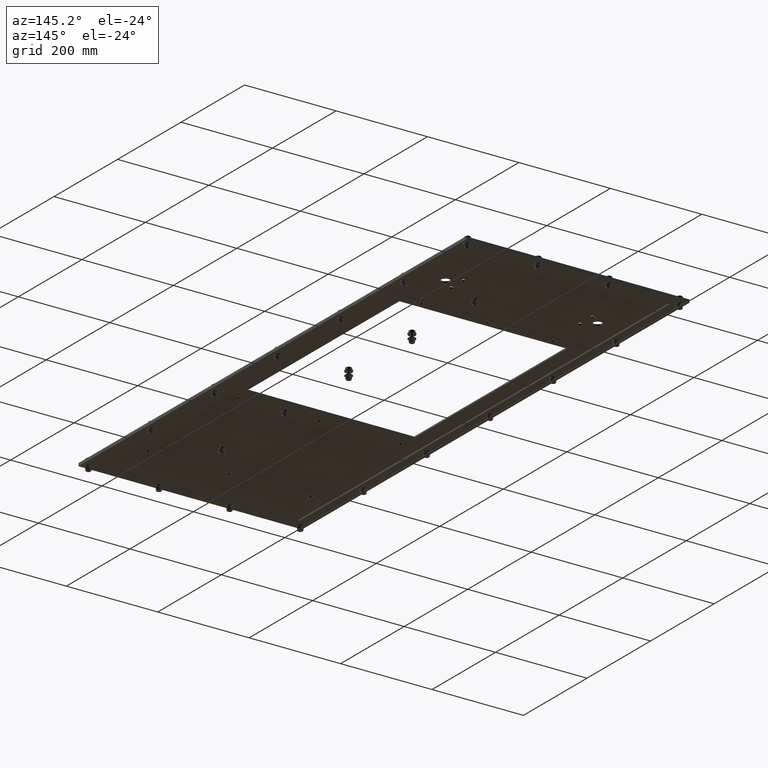
[diagram: clean part render]
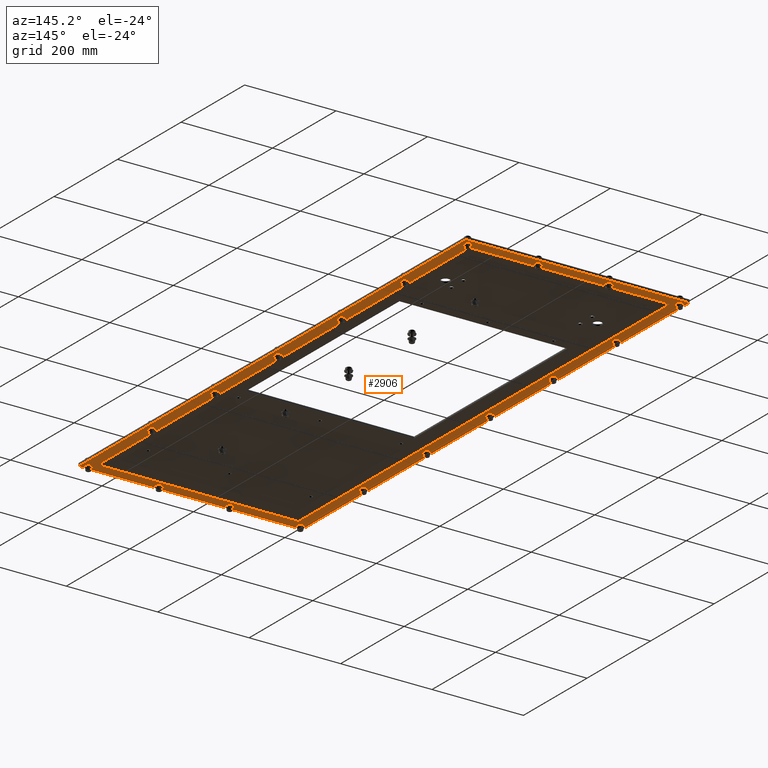
[diagram: same view with one face highlighted and labeled with its STEP entity id]
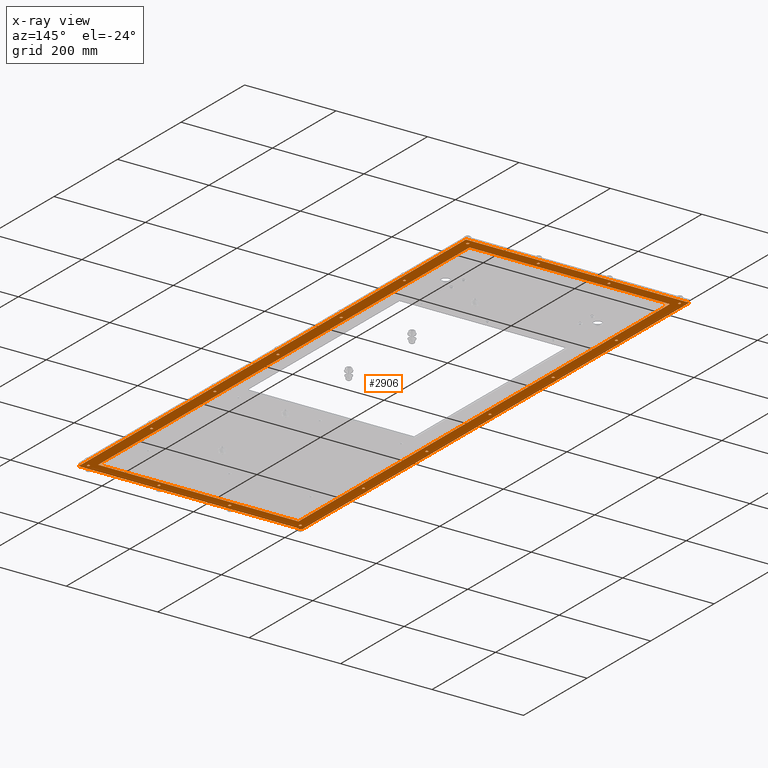
[diagram: x-ray of the same camera — body ghosted, the highlighted face saturated]
A machine part, auxiliary view. The second image highlights one B-rep face of the part: STEP entity #2906.
The next image is the same camera in x-ray: the body ghosted, the highlighted face saturated — about 0% of this face is hidden behind the body in this view.
In plain terms, the highlighted planar face has unit normal (0, 0, 1).
Its self-contained STEP definition (entity closure, byte-faithful):
#331=FACE_BOUND('',#980,.T.);
#332=FACE_BOUND('',#981,.T.);
#333=FACE_BOUND('',#982,.T.);
#334=FACE_BOUND('',#983,.T.);
#335=FACE_BOUND('',#984,.T.);
#336=FACE_BOUND('',#985,.T.);
#337=FACE_BOUND('',#986,.T.);
#338=FACE_BOUND('',#987,.T.);
#339=FACE_BOUND('',#988,.T.);
#340=FACE_BOUND('',#989,.T.);
#341=FACE_BOUND('',#990,.T.);
#342=FACE_BOUND('',#991,.T.);
#343=FACE_BOUND('',#992,.T.);
#344=FACE_BOUND('',#993,.T.);
#345=FACE_BOUND('',#994,.T.);
#346=FACE_BOUND('',#995,.T.);
#347=FACE_BOUND('',#996,.T.);
#348=FACE_BOUND('',#997,.T.);
#349=FACE_BOUND('',#998,.T.);
#448=CIRCLE('',#3115,0.109375);
#450=CIRCLE('',#3118,0.109375);
#452=CIRCLE('',#3121,0.109375);
#454=CIRCLE('',#3124,0.109375);
#456=CIRCLE('',#3127,0.109375);
#458=CIRCLE('',#3130,0.109375);
#460=CIRCLE('',#3133,0.109375);
#462=CIRCLE('',#3136,0.109375);
#464=CIRCLE('',#3139,0.109375);
#466=CIRCLE('',#3142,0.109375);
#468=CIRCLE('',#3145,0.109375);
#470=CIRCLE('',#3148,0.109375);
#472=CIRCLE('',#3151,0.109375);
#474=CIRCLE('',#3154,0.109375);
#476=CIRCLE('',#3157,0.109375);
#478=CIRCLE('',#3160,0.109375);
#480=CIRCLE('',#3163,0.109375);
#482=CIRCLE('',#3166,0.109375);
#681=FACE_OUTER_BOUND('',#979,.T.);
#979=EDGE_LOOP('',(#2261,#2262,#2263,#2264));
#980=EDGE_LOOP('',(#2265));
#981=EDGE_LOOP('',(#2266));
#982=EDGE_LOOP('',(#2267));
#983=EDGE_LOOP('',(#2268));
#984=EDGE_LOOP('',(#2269));
#985=EDGE_LOOP('',(#2270));
#986=EDGE_LOOP('',(#2271));
#987=EDGE_LOOP('',(#2272));
#988=EDGE_LOOP('',(#2273));
#989=EDGE_LOOP('',(#2274));
#990=EDGE_LOOP('',(#2275));
#991=EDGE_LOOP('',(#2276));
#992=EDGE_LOOP('',(#2277));
#993=EDGE_LOOP('',(#2278));
#994=EDGE_LOOP('',(#2279));
#995=EDGE_LOOP('',(#2280));
#996=EDGE_LOOP('',(#2281));
#997=EDGE_LOOP('',(#2282));
#998=EDGE_LOOP('',(#2283,#2284,#2285,#2286));
#1146=LINE('',#4529,#1287);
#1149=LINE('',#4535,#1290);
#1152=LINE('',#4541,#1293);
#1155=LINE('',#4545,#1296);
#1158=LINE('',#4553,#1299);
#1162=LINE('',#4560,#1303);
#1165=LINE('',#4566,#1306);
#1167=LINE('',#4569,#1308);
#1287=VECTOR('',#3718,46.);
#1290=VECTOR('',#3723,17.25);
#1293=VECTOR('',#3728,46.);
#1296=VECTOR('',#3733,17.25);
#1299=VECTOR('',#3738,48.);
#1303=VECTOR('',#3744,19.25);
#1306=VECTOR('',#3749,48.);
#1308=VECTOR('',#3753,19.25);
#1484=VERTEX_POINT('',#4433);
#1486=VERTEX_POINT('',#4438);
#1488=VERTEX_POINT('',#4443);
#1490=VERTEX_POINT('',#4448);
#1492=VERTEX_POINT('',#4453);
#1494=VERTEX_POINT('',#4458);
#1496=VERTEX_POINT('',#4463);
#1498=VERTEX_POINT('',#4468);
#1500=VERTEX_POINT('',#4473);
#1502=VERTEX_POINT('',#4478);
#1504=VERTEX_POINT('',#4483);
#1506=VERTEX_POINT('',#4488);
#1508=VERTEX_POINT('',#4493);
#1510=VERTEX_POINT('',#4498);
#1512=VERTEX_POINT('',#4503);
#1514=VERTEX_POINT('',#4508);
#1516=VERTEX_POINT('',#4513);
#1518=VERTEX_POINT('',#4518);
#1522=VERTEX_POINT('',#4526);
#1523=VERTEX_POINT('',#4528);
#1525=VERTEX_POINT('',#4534);
#1527=VERTEX_POINT('',#4540);
#1530=VERTEX_POINT('',#4550);
#1531=VERTEX_POINT('',#4552);
#1533=VERTEX_POINT('',#4558);
#1535=VERTEX_POINT('',#4564);
#1750=EDGE_CURVE('',#1484,#1484,#448,.T.);
#1752=EDGE_CURVE('',#1486,#1486,#450,.T.);
#1754=EDGE_CURVE('',#1488,#1488,#452,.T.);
#1756=EDGE_CURVE('',#1490,#1490,#454,.T.);
#1758=EDGE_CURVE('',#1492,#1492,#456,.T.);
#1760=EDGE_CURVE('',#1494,#1494,#458,.T.);
#1762=EDGE_CURVE('',#1496,#1496,#460,.T.);
#1764=EDGE_CURVE('',#1498,#1498,#462,.T.);
#1766=EDGE_CURVE('',#1500,#1500,#464,.T.);
#1768=EDGE_CURVE('',#1502,#1502,#466,.T.);
#1770=EDGE_CURVE('',#1504,#1504,#468,.T.);
#1772=EDGE_CURVE('',#1506,#1506,#470,.T.);
#1774=EDGE_CURVE('',#1508,#1508,#472,.T.);
#1776=EDGE_CURVE('',#1510,#1510,#474,.T.);
#1778=EDGE_CURVE('',#1512,#1512,#476,.T.);
#1780=EDGE_CURVE('',#1514,#1514,#478,.T.);
#1782=EDGE_CURVE('',#1516,#1516,#480,.T.);
#1784=EDGE_CURVE('',#1518,#1518,#482,.T.);
#1788=EDGE_CURVE('',#1523,#1522,#1146,.T.);
#1791=EDGE_CURVE('',#1525,#1523,#1149,.T.);
#1794=EDGE_CURVE('',#1527,#1525,#1152,.T.);
#1797=EDGE_CURVE('',#1522,#1527,#1155,.T.);
#1800=EDGE_CURVE('',#1531,#1530,#1158,.T.);
#1804=EDGE_CURVE('',#1530,#1533,#1162,.T.);
#1807=EDGE_CURVE('',#1533,#1535,#1165,.T.);
#1809=EDGE_CURVE('',#1535,#1531,#1167,.T.);
#2261=ORIENTED_EDGE('',*,*,#1809,.T.);
#2262=ORIENTED_EDGE('',*,*,#1800,.T.);
#2263=ORIENTED_EDGE('',*,*,#1804,.T.);
#2264=ORIENTED_EDGE('',*,*,#1807,.T.);
#2265=ORIENTED_EDGE('',*,*,#1750,.T.);
#2266=ORIENTED_EDGE('',*,*,#1752,.T.);
#2267=ORIENTED_EDGE('',*,*,#1754,.T.);
#2268=ORIENTED_EDGE('',*,*,#1756,.T.);
#2269=ORIENTED_EDGE('',*,*,#1758,.T.);
#2270=ORIENTED_EDGE('',*,*,#1760,.T.);
#2271=ORIENTED_EDGE('',*,*,#1762,.T.);
#2272=ORIENTED_EDGE('',*,*,#1764,.T.);
#2273=ORIENTED_EDGE('',*,*,#1766,.T.);
#2274=ORIENTED_EDGE('',*,*,#1768,.T.);
#2275=ORIENTED_EDGE('',*,*,#1770,.T.);
#2276=ORIENTED_EDGE('',*,*,#1772,.T.);
#2277=ORIENTED_EDGE('',*,*,#1774,.T.);
#2278=ORIENTED_EDGE('',*,*,#1776,.T.);
#2279=ORIENTED_EDGE('',*,*,#1778,.T.);
#2280=ORIENTED_EDGE('',*,*,#1780,.T.);
#2281=ORIENTED_EDGE('',*,*,#1782,.T.);
#2282=ORIENTED_EDGE('',*,*,#1784,.T.);
#2283=ORIENTED_EDGE('',*,*,#1788,.T.);
#2284=ORIENTED_EDGE('',*,*,#1797,.T.);
#2285=ORIENTED_EDGE('',*,*,#1794,.T.);
#2286=ORIENTED_EDGE('',*,*,#1791,.T.);
#2660=PLANE('',#3177);
#2906=ADVANCED_FACE('',(#681,#331,#332,#333,#334,#335,#336,#337,#338,#339,
#340,#341,#342,#343,#344,#345,#346,#347,#348,#349),#2660,.F.);
#3115=AXIS2_PLACEMENT_3D('',#4434,#3608,#3609);
#3118=AXIS2_PLACEMENT_3D('',#4439,#3614,#3615);
#3121=AXIS2_PLACEMENT_3D('',#4444,#3620,#3621);
#3124=AXIS2_PLACEMENT_3D('',#4449,#3626,#3627);
#3127=AXIS2_PLACEMENT_3D('',#4454,#3632,#3633);
#3130=AXIS2_PLACEMENT_3D('',#4459,#3638,#3639);
#3133=AXIS2_PLACEMENT_3D('',#4464,#3644,#3645);
#3136=AXIS2_PLACEMENT_3D('',#4469,#3650,#3651);
#3139=AXIS2_PLACEMENT_3D('',#4474,#3656,#3657);
#3142=AXIS2_PLACEMENT_3D('',#4479,#3662,#3663);
#3145=AXIS2_PLACEMENT_3D('',#4484,#3668,#3669);
#3148=AXIS2_PLACEMENT_3D('',#4489,#3674,#3675);
#3151=AXIS2_PLACEMENT_3D('',#4494,#3680,#3681);
#3154=AXIS2_PLACEMENT_3D('',#4499,#3686,#3687);
#3157=AXIS2_PLACEMENT_3D('',#4504,#3692,#3693);
#3160=AXIS2_PLACEMENT_3D('',#4509,#3698,#3699);
#3163=AXIS2_PLACEMENT_3D('',#4514,#3704,#3705);
#3166=AXIS2_PLACEMENT_3D('',#4519,#3710,#3711);
#3177=AXIS2_PLACEMENT_3D('',#4571,#3756,#3757);
#3608=DIRECTION('center_axis',(0.,0.,1.));
#3609=DIRECTION('ref_axis',(-1.,0.,0.));
#3614=DIRECTION('center_axis',(0.,0.,1.));
#3615=DIRECTION('ref_axis',(-1.,0.,0.));
#3620=DIRECTION('center_axis',(0.,0.,1.));
#3621=DIRECTION('ref_axis',(-1.,0.,0.));
#3626=DIRECTION('center_axis',(0.,0.,1.));
#3627=DIRECTION('ref_axis',(-1.,0.,0.));
#3632=DIRECTION('center_axis',(0.,0.,1.));
#3633=DIRECTION('ref_axis',(-1.,0.,0.));
#3638=DIRECTION('center_axis',(0.,0.,1.));
#3639=DIRECTION('ref_axis',(-1.,0.,0.));
#3644=DIRECTION('center_axis',(0.,0.,1.));
#3645=DIRECTION('ref_axis',(-1.,0.,0.));
#3650=DIRECTION('center_axis',(0.,0.,1.));
#3651=DIRECTION('ref_axis',(-1.,0.,0.));
#3656=DIRECTION('center_axis',(0.,0.,1.));
#3657=DIRECTION('ref_axis',(-1.,0.,0.));
#3662=DIRECTION('center_axis',(0.,0.,1.));
#3663=DIRECTION('ref_axis',(-1.,0.,0.));
#3668=DIRECTION('center_axis',(0.,0.,1.));
#3669=DIRECTION('ref_axis',(-1.,0.,0.));
#3674=DIRECTION('center_axis',(0.,0.,1.));
#3675=DIRECTION('ref_axis',(-1.,0.,0.));
#3680=DIRECTION('center_axis',(0.,0.,1.));
#3681=DIRECTION('ref_axis',(-1.,0.,0.));
#3686=DIRECTION('center_axis',(0.,0.,1.));
#3687=DIRECTION('ref_axis',(-1.,0.,0.));
#3692=DIRECTION('center_axis',(0.,0.,1.));
#3693=DIRECTION('ref_axis',(-1.,0.,0.));
#3698=DIRECTION('center_axis',(0.,0.,1.));
#3699=DIRECTION('ref_axis',(-1.,0.,0.));
#3704=DIRECTION('center_axis',(0.,0.,1.));
#3705=DIRECTION('ref_axis',(-1.,0.,0.));
#3710=DIRECTION('center_axis',(0.,0.,1.));
#3711=DIRECTION('ref_axis',(-1.,0.,0.));
#3718=DIRECTION('',(-1.82439935576883E-16,1.,0.));
#3723=DIRECTION('',(1.,3.24337663247792E-16,0.));
#3728=DIRECTION('',(5.77726462660129E-16,-1.,0.));
#3733=DIRECTION('',(-1.,-8.10844158119479E-17,0.));
#3738=DIRECTION('',(2.91397119324188E-16,-1.,0.));
#3744=DIRECTION('',(-1.,0.,0.));
#3749=DIRECTION('',(-4.22525823020073E-16,1.,0.));
#3753=DIRECTION('',(1.,0.,0.));
#3756=DIRECTION('center_axis',(0.,0.,1.));
#3757=DIRECTION('ref_axis',(1.,0.,0.));
#4433=CARTESIAN_POINT('',(13.3394636570073,-34.4703914895966,0.));
#4434=CARTESIAN_POINT('Origin',(13.2300886570073,-34.4703914895966,0.));
#4438=CARTESIAN_POINT('',(7.256130323674,-34.4703914895966,0.));
#4439=CARTESIAN_POINT('Origin',(7.146755323674,-34.4703914895966,0.));
#4443=CARTESIAN_POINT('',(1.17279699034067,-34.4703914895966,0.));
#4444=CARTESIAN_POINT('Origin',(1.06342199034067,-34.4703914895966,0.));
#4448=CARTESIAN_POINT('',(-4.91053634299267,-34.4703914895966,0.));
#4449=CARTESIAN_POINT('Origin',(-5.01991134299267,-34.4703914895966,0.));
#4453=CARTESIAN_POINT('',(13.3394636570073,-26.6370581562632,0.));
#4454=CARTESIAN_POINT('Origin',(13.2300886570073,-26.6370581562632,0.));
#4458=CARTESIAN_POINT('',(-4.91053634299267,-26.6370581562632,0.));
#4459=CARTESIAN_POINT('Origin',(-5.01991134299267,-26.6370581562632,0.));
#4463=CARTESIAN_POINT('',(13.3394636570073,-18.8037248229299,0.));
#4464=CARTESIAN_POINT('Origin',(13.2300886570073,-18.8037248229299,0.));
#4468=CARTESIAN_POINT('',(-4.91053634299267,-18.8037248229299,0.));
#4469=CARTESIAN_POINT('Origin',(-5.01991134299268,-18.8037248229299,0.));
#4473=CARTESIAN_POINT('',(13.3394636570073,-10.9703914895966,0.));
#4474=CARTESIAN_POINT('Origin',(13.2300886570073,-10.9703914895966,0.));
#4478=CARTESIAN_POINT('',(-4.91053634299268,-10.9703914895966,0.));
#4479=CARTESIAN_POINT('Origin',(-5.01991134299268,-10.9703914895966,0.));
#4483=CARTESIAN_POINT('',(13.3394636570073,-3.13705815626323,0.));
#4484=CARTESIAN_POINT('Origin',(13.2300886570073,-3.13705815626323,0.));
#4488=CARTESIAN_POINT('',(-4.91053634299268,-3.13705815626323,0.));
#4489=CARTESIAN_POINT('Origin',(-5.01991134299268,-3.13705815626323,0.));
#4493=CARTESIAN_POINT('',(13.3394636570073,4.69627517707011,0.));
#4494=CARTESIAN_POINT('Origin',(13.2300886570073,4.69627517707011,0.));
#4498=CARTESIAN_POINT('',(-4.91053634299269,4.69627517707011,0.));
#4499=CARTESIAN_POINT('Origin',(-5.01991134299268,4.69627517707011,0.));
#4503=CARTESIAN_POINT('',(13.3394636570073,12.5296085104034,0.));
#4504=CARTESIAN_POINT('Origin',(13.2300886570073,12.5296085104034,0.));
#4508=CARTESIAN_POINT('',(7.25613032367398,12.5296085104034,0.));
#4509=CARTESIAN_POINT('Origin',(7.14675532367398,12.5296085104034,0.));
#4513=CARTESIAN_POINT('',(1.17279699034065,12.5296085104034,0.));
#4514=CARTESIAN_POINT('Origin',(1.06342199034065,12.5296085104034,0.));
#4518=CARTESIAN_POINT('',(-4.91053634299269,12.5296085104034,0.));
#4519=CARTESIAN_POINT('Origin',(-5.01991134299269,12.5296085104034,0.));
#4526=CARTESIAN_POINT('',(12.7300886570073,12.0296085104034,0.));
#4528=CARTESIAN_POINT('',(12.7300886570073,-33.9703914895966,0.));
#4529=CARTESIAN_POINT('',(12.7300886570073,0.529608510403442,0.));
#4534=CARTESIAN_POINT('',(-4.51991134299267,-33.9703914895966,0.));
#4535=CARTESIAN_POINT('',(8.41758865700733,-33.9703914895966,0.));
#4540=CARTESIAN_POINT('',(-4.51991134299269,12.0296085104034,0.));
#4541=CARTESIAN_POINT('',(-4.51991134299267,-22.4703914895966,0.));
#4545=CARTESIAN_POINT('',(-0.207411342992685,12.0296085104034,0.));
#4550=CARTESIAN_POINT('',(13.7300886570073,-34.9703914895966,0.));
#4552=CARTESIAN_POINT('',(13.7300886570073,13.0296085104034,0.));
#4553=CARTESIAN_POINT('',(13.7300886570073,13.0296085104034,0.));
#4558=CARTESIAN_POINT('',(-5.51991134299267,-34.9703914895966,0.));
#4560=CARTESIAN_POINT('',(13.7300886570073,-34.9703914895966,0.));
#4564=CARTESIAN_POINT('',(-5.51991134299269,13.0296085104034,0.));
#4566=CARTESIAN_POINT('',(-5.51991134299267,-34.9703914895966,0.));
#4569=CARTESIAN_POINT('',(-5.51991134299269,13.0296085104034,0.));
#4571=CARTESIAN_POINT('Origin',(4.10508865700732,-10.9703914895966,0.));